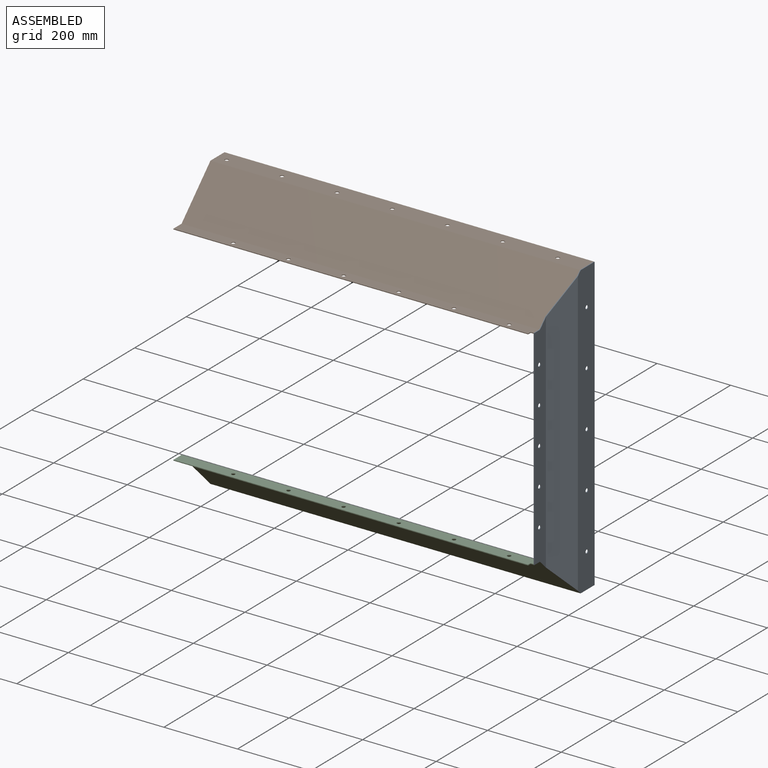
[diagram: assembled view]
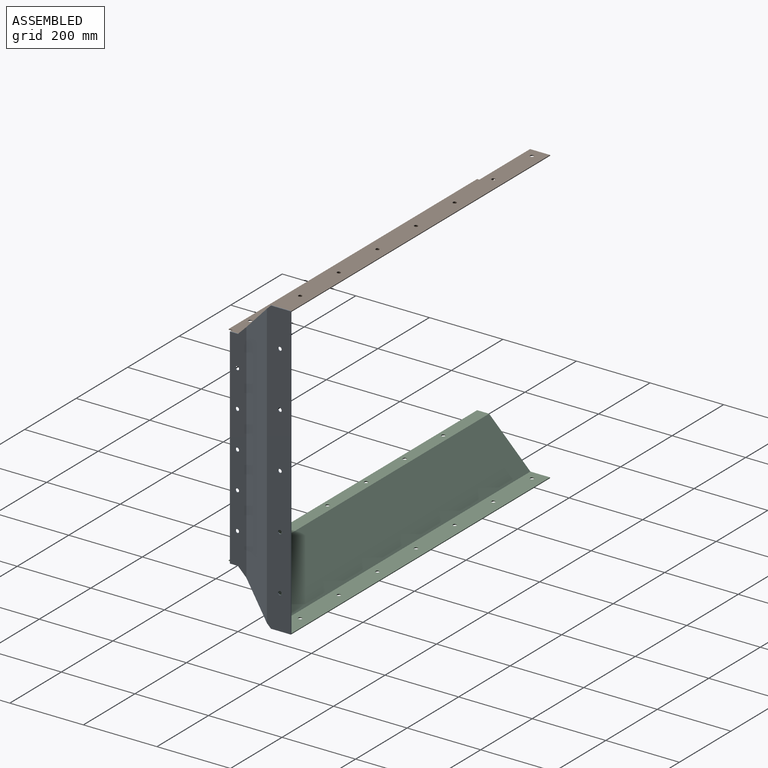
[diagram: assembled view, second angle]
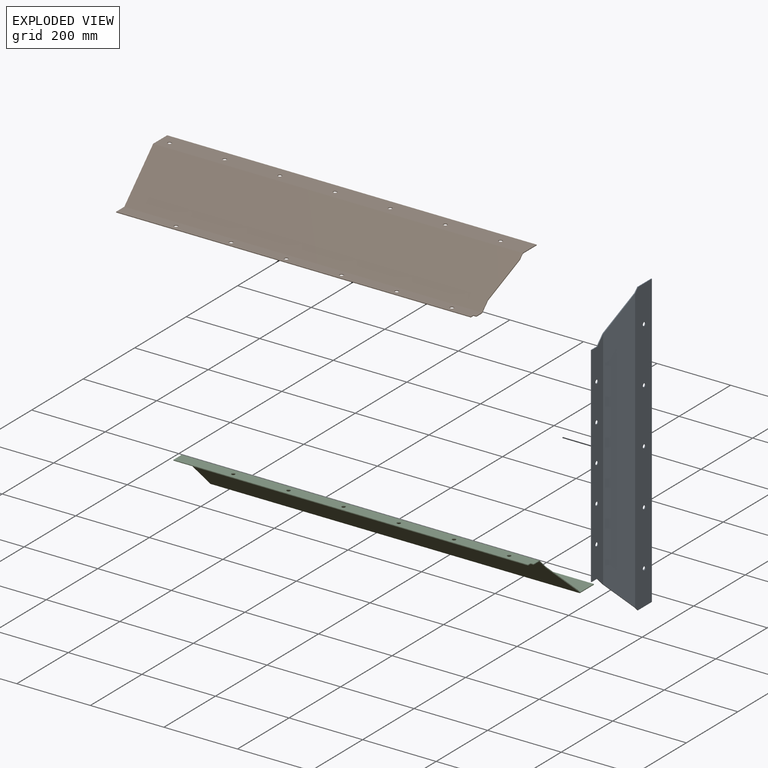
[diagram: exploded view]
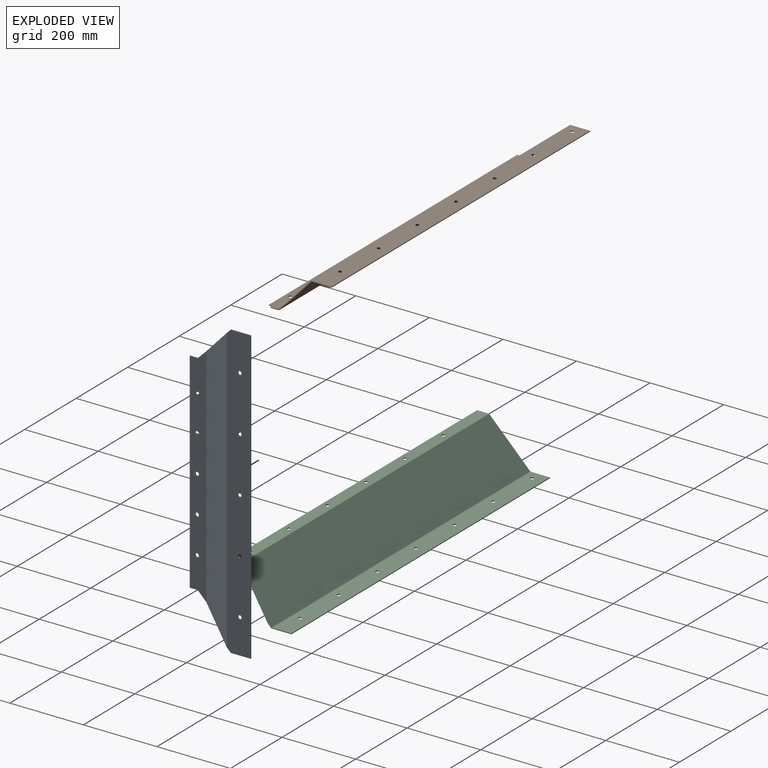
[diagram: exploded view, second angle]
ASSEMBLY  parts=3 mates=2
PART A: 24 faces, bbox 34x188.3x794.2 mm
  f0: plane 21.85x2mm, normal (0,0,1), area 43.7mm2, adj f1,f5,f11,f12
  f1: plane 112.09x112.09mm, normal (0,-0.71,0.71), area 334.8mm2, adj f0,f2,f3,f4,f10,f11,f12,f13
  f2: plane 54.37x2mm, normal (0,0,1), area 108.7mm2, adj f1,f6,f10,f13
  f3: plane 772.55x78.3mm, normal (0.93,-0.38,0), area 58723.9mm2, adj f1,f8,f12,f13
  f4: plane 773.33x78.3mm, normal (-0.93,0.38,0), area 58790.3mm2, adj f1,f8,f10,f11
  f5: plane 570x2mm, normal (0,-1,0), area 1140mm2, adj f0,f9,f11,f12
  f6: plane 794.17x2mm, normal (0,1,0), area 1588.3mm2, adj f2,f7,f10,f13
  f7: plane 54.37x2mm, normal (0,0,-1), area 108.7mm2, adj f6,f8,f10,f13
  f8: plane 112.09x112.09mm, normal (0,-0.71,-0.71), area 334.8mm2, adj f3,f4,f7,f9,f10,f11,f12,f13
  f9: plane 21.85x2mm, normal (0,0,-1), area 43.7mm2, adj f5,f8,f11,f12
  f10: plane 794.17x64.79mm, normal (-1,0,0), area 50951.7mm2, adj f1,f2,f4,f6,f7,f8,f14,f16
  f11: plane 616.73x45.21mm, normal (-1,0,0), area 25923.9mm2, adj f0,f1,f4,f5,f8,f9,f15,f17
  f12: plane 615.95x44.82mm, normal (1,0,0), area 25681.8mm2, adj f0,f1,f3,f5,f8,f9,f15,f17
  f13: plane 794.17x65.18mm, normal (1,0,0), area 51255.4mm2, adj f1,f2,f3,f6,f7,f8,f14,f16
  f14: cylinder r=5mm len=10mm, axis (1,0,0), area 62.8mm2, adj f10,f13
  f15: cylinder r=5mm len=10mm, axis (1,0,0), area 62.8mm2, adj f11,f12
  f16: cylinder r=5mm len=10mm, axis (1,0,0), area 62.8mm2, adj f10,f13
  f17: cylinder r=5mm len=10mm, axis (1,0,0), area 62.8mm2, adj f11,f12
  f18: cylinder r=5mm len=10mm, axis (1,0,0), area 62.8mm2, adj f10,f13
  f19: cylinder r=5mm len=10mm, axis (1,0,0), area 62.8mm2, adj f11,f12
  f20: cylinder r=5mm len=10mm, axis (1,0,0), area 62.8mm2, adj f10,f13
  f21: cylinder r=5mm len=10mm, axis (1,0,0), area 62.8mm2, adj f11,f12
  f22: cylinder r=5mm len=10mm, axis (1,0,0), area 62.8mm2, adj f10,f13
  f23: cylinder r=5mm len=10mm, axis (1,0,0), area 62.8mm2, adj f11,f12
PART B: 27 faces, bbox 1004.3x198.3x114.1 mm
  f0: plane 1004.28x2mm, normal (0,1,0), area 2008.6mm2, adj f4,f10,f18,f26
  f1: plane 1004.28x112.09mm, normal (0,-0.71,0.71), area 156361.8mm2, adj f3,f8,f9,f10,f18,f26
  f2: plane 1004.28x112.09mm, normal (0,0.71,-0.71), area 156399.3mm2, adj f4,f8,f9,f10,f11,f26
  f3: plane 972.28x31.85mm, normal (0,0,1), area 30412.1mm2, adj f1,f5,f6,f7,f8,f12,f13,f14
  f4: plane 1004.28x53.54mm, normal (0,0,-1), area 53219.5mm2, adj f0,f2,f10,f19,f20,f21,f22,f23
  f5: plane 10x2mm, normal (1,0,0), area 20mm2, adj f3,f6,f7,f11
  f6: plane 964.28x2mm, normal (0,-1,0), area 1928.6mm2, adj f3,f5,f11,f26
  f7: plane 8x2mm, normal (0,-1,0), area 16mm2, adj f3,f5,f8,f11
  f8: plane 45.21x25.37mm, normal (1,0,0), area 109.4mm2, adj f1,f2,f3,f7,f9,f11
  f9: plane 81.13x78.3mm, normal (0.93,-0.38,0), area 239.2mm2, adj f1,f2,f8,f10
  f10: plane 64.79x13.25mm, normal (1,0,0), area 138.6mm2, adj f0,f1,f2,f4,f9,f18
  f11: plane 972.28x32.67mm, normal (0,0,-1), area 31217.5mm2, adj f2,f5,f6,f7,f8,f12,f13,f14
  f12: cylinder r=5mm len=10mm, axis (0,0,1), area 62.8mm2, adj f3,f11
  f13: cylinder r=5mm len=10mm, axis (0,0,1), area 62.8mm2, adj f3,f11
  f14: cylinder r=5mm len=10mm, axis (0,0,1), area 62.8mm2, adj f3,f11
  f15: cylinder r=5mm len=10mm, axis (0,0,1), area 62.8mm2, adj f3,f11
  f16: cylinder r=5mm len=10mm, axis (0,0,1), area 62.8mm2, adj f3,f11
  f17: cylinder r=5mm len=10mm, axis (0,0,1), area 62.8mm2, adj f3,f11
  f18: plane 1004.28x54.37mm, normal (0,0,1), area 54051.5mm2, adj f0,f1,f10,f19,f20,f21,f22,f23
  f19: cylinder r=5mm len=10mm, axis (0,0,-1), area 62.8mm2, adj f4,f18
  f20: cylinder r=5mm len=10mm, axis (0,0,-1), area 62.8mm2, adj f4,f18
  f21: cylinder r=5mm len=10mm, axis (0,0,-1), area 62.8mm2, adj f4,f18
  f22: cylinder r=5mm len=10mm, axis (0,0,-1), area 62.8mm2, adj f4,f18
  f23: cylinder r=5mm len=10mm, axis (0,0,-1), area 62.8mm2, adj f4,f18
  f24: cylinder r=5mm len=10mm, axis (0,0,-1), area 62.8mm2, adj f4,f18
  f25: cylinder r=5mm len=10mm, axis (0,0,-1), area 62.8mm2, adj f4,f18
  f26: plane 198.3x114.09mm, normal (-1,0,0), area 489.5mm2, adj f0,f1,f2,f3,f4,f6,f11,f18
PART C: 27 faces, bbox 1004.3x198.3x114.1 mm
  f0: plane 1004.28x2mm, normal (0,1,0), area 2008.6mm2, adj f8,f17,f18,f26
  f1: plane 10x2mm, normal (1,0,0), area 20mm2, adj f2,f5,f9,f10
  f2: plane 964.28x2mm, normal (0,-1,0), area 1928.6mm2, adj f1,f9,f10,f26
  f3: plane 1004.28x112.09mm, normal (0,-0.71,-0.71), area 156361.8mm2, adj f6,f7,f8,f10,f18,f26
  f4: plane 1004.28x112.09mm, normal (0,0.71,0.71), area 156399.3mm2, adj f6,f7,f8,f9,f17,f26
  f5: plane 8x2mm, normal (0,-1,0), area 16mm2, adj f1,f6,f9,f10
  f6: plane 45.21x25.37mm, normal (1,0,0), area 109.4mm2, adj f3,f4,f5,f7,f9,f10
  f7: plane 81.13x78.3mm, normal (0.93,-0.38,0), area 239.2mm2, adj f3,f4,f6,f8
  f8: plane 64.79x13.25mm, normal (1,0,0), area 138.6mm2, adj f0,f3,f4,f7,f17,f18
  f9: plane 972.28x32.67mm, normal (0,0,1), area 31217.5mm2, adj f1,f2,f4,f5,f6,f11,f12,f13
  f10: plane 972.28x31.85mm, normal (0,0,-1), area 30412.1mm2, adj f1,f2,f3,f5,f6,f11,f12,f13
  f11: cylinder r=5mm len=10mm, axis (0,0,1), area 62.8mm2, adj f9,f10
  f12: cylinder r=5mm len=10mm, axis (0,0,1), area 62.8mm2, adj f9,f10
  f13: cylinder r=5mm len=10mm, axis (0,0,1), area 62.8mm2, adj f9,f10
  f14: cylinder r=5mm len=10mm, axis (0,0,1), area 62.8mm2, adj f9,f10
  f15: cylinder r=5mm len=10mm, axis (0,0,1), area 62.8mm2, adj f9,f10
  f16: cylinder r=5mm len=10mm, axis (0,0,1), area 62.8mm2, adj f9,f10
  f17: plane 1004.28x53.54mm, normal (0,0,1), area 53219.5mm2, adj f0,f4,f8,f19,f20,f21,f22,f23
  f18: plane 1004.28x54.37mm, normal (0,0,-1), area 54051.5mm2, adj f0,f3,f8,f19,f20,f21,f22,f23
  f19: cylinder r=5mm len=10mm, axis (0,0,-1), area 62.8mm2, adj f17,f18
  f20: cylinder r=5mm len=10mm, axis (0,0,-1), area 62.8mm2, adj f17,f18
  f21: cylinder r=5mm len=10mm, axis (0,0,-1), area 62.8mm2, adj f17,f18
  f22: cylinder r=5mm len=10mm, axis (0,0,-1), area 62.8mm2, adj f17,f18
  f23: cylinder r=5mm len=10mm, axis (0,0,-1), area 62.8mm2, adj f17,f18
  f24: cylinder r=5mm len=10mm, axis (0,0,-1), area 62.8mm2, adj f17,f18
  f25: cylinder r=5mm len=10mm, axis (0,0,-1), area 62.8mm2, adj f17,f18
  f26: plane 198.3x114.09mm, normal (-1,0,0), area 489.5mm2, adj f0,f2,f3,f4,f9,f10,f17,f18
PLACE A t=(-62.27,-268.45,-499.18)mm fixed
PLACE B t=(-62.27,-268.45,-499.18)mm
PLACE C t=(-62.27,-268.45,-499.18)mm
MATE fastened B.f10 <-> A.f10  axis (1,0,0) through (-22.27,-70.15,182.91)mm
MATE fastened C.f8 <-> A.f10  axis (1,0,0) through (-22.27,-70.15,-611.26)mm
